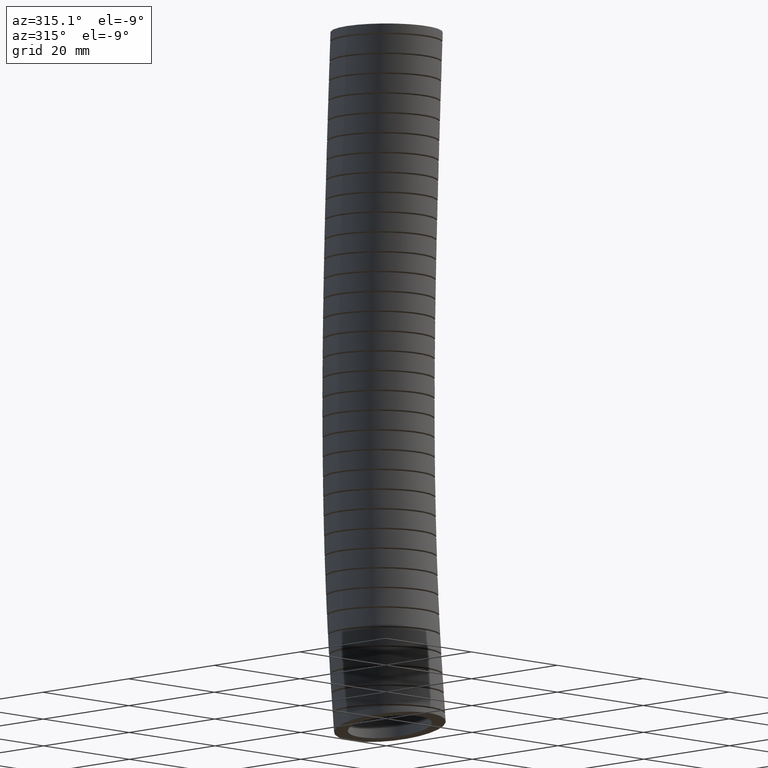
[diagram: clean part render]
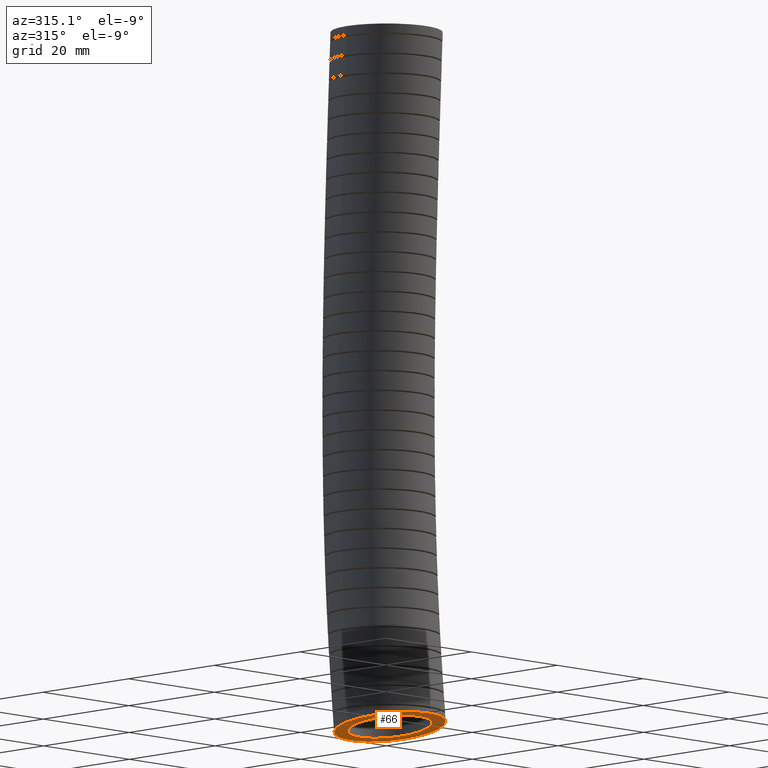
[diagram: same view with one face highlighted and labeled with its STEP entity id]
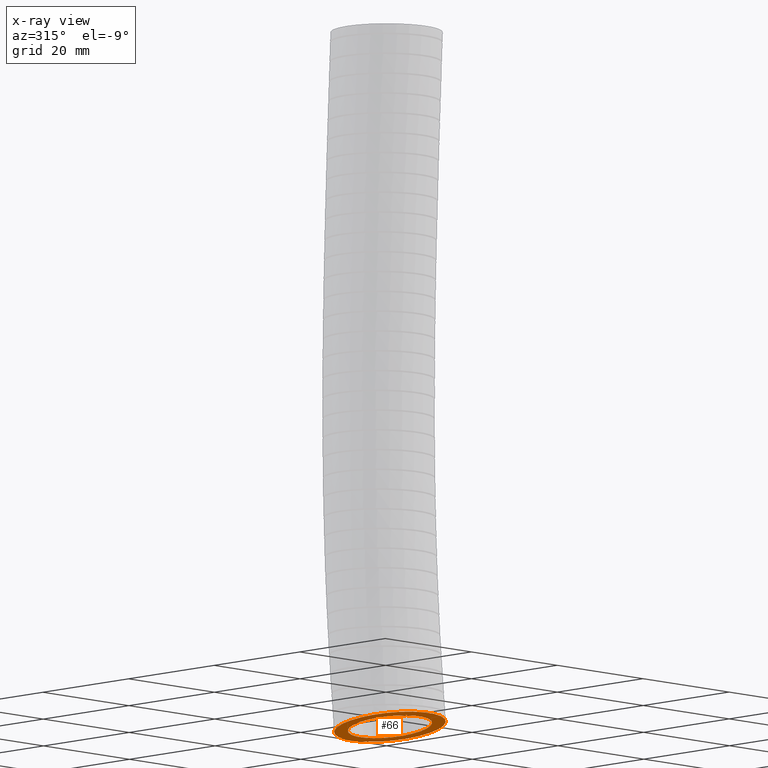
[diagram: x-ray of the same camera — body ghosted, the highlighted face saturated]
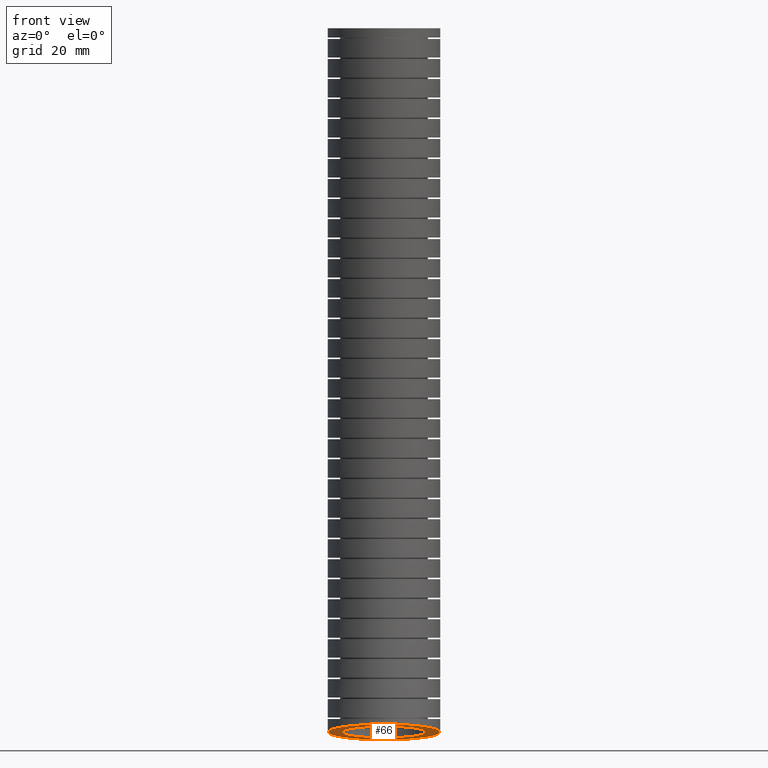
[diagram: same view with one face highlighted and labeled with its STEP entity id]
A machine part, auxiliary view. The second image highlights one B-rep face of the part: STEP entity #66.
The next image is the same camera in x-ray: the body ghosted, the highlighted face saturated — about 0% of this face is hidden behind the body in this view.
A second angle (front view) of the same face is appended — the face is thin or edge-on in the first view.
In plain terms, the highlighted planar face has unit normal (0, 0.1381, 0.9904).
Its self-contained STEP definition (entity closure, byte-faithful):
#42 = EDGE_LOOP ( 'NONE', ( #146, #124 ) ) ;
#43 = EDGE_CURVE ( 'NONE', #222, #938, #1461, .T. ) ;
#51 = ORIENTED_EDGE ( 'NONE', *, *, #224, .T. ) ;
#58 = ORIENTED_EDGE ( 'NONE', *, *, #43, .T. ) ;
#66 = ADVANCED_FACE ( 'NONE', ( #1672, #1671 ), #1678, .F. ) ;
#70 = EDGE_LOOP ( 'NONE', ( #51, #58 ) ) ;
#124 = ORIENTED_EDGE ( 'NONE', *, *, #6200, .F. ) ;
#146 = ORIENTED_EDGE ( 'NONE', *, *, #6262, .F. ) ;
#222 = VERTEX_POINT ( 'NONE', #3356 ) ;
#224 = EDGE_CURVE ( 'NONE', #938, #222, #3404, .T. ) ;
#938 = VERTEX_POINT ( 'NONE', #7361 ) ;
#1457 = DIRECTION ( 'NONE',  ( 1.000000000000000000, 0.0000000000000000000, 0.0000000000000000000 ) ) ;
#1458 = DIRECTION ( 'NONE',  ( 0.0000000000000000000, 0.1381350633062757000, 0.9904134006996124800 ) ) ;
#1459 = CARTESIAN_POINT ( 'NONE',  ( 0.0000000000000000000, -0.02999999999999997100, -4.569999999999999400 ) ) ;
#1460 = AXIS2_PLACEMENT_3D ( 'NONE', #1459, #1458, #1457 ) ;
#1461 = CIRCLE ( 'NONE', #1460, 0.2750000000000000200 ) ;
#1671 = FACE_OUTER_BOUND ( 'NONE', #42, .T. ) ;
#1672 = FACE_BOUND ( 'NONE', #70, .T. ) ;
#1677 = AXIS2_PLACEMENT_3D ( 'NONE', #1728, #1727, #1726 ) ;
#1678 = PLANE ( 'NONE',  #1677 ) ;
#1726 = DIRECTION ( 'NONE',  ( 1.000000000000000000, 0.0000000000000000000, 0.0000000000000000000 ) ) ;
#1727 = DIRECTION ( 'NONE',  ( 0.0000000000000000000, 0.1381350633062757000, 0.9904134006996124800 ) ) ;
#1728 = CARTESIAN_POINT ( 'NONE',  ( 0.0000000000000000000, -0.02999999999999997100, -4.569999999999999400 ) ) ;
#3356 = CARTESIAN_POINT ( 'NONE',  ( -0.2750000000000000200, -0.02999999999999990200, -4.569999999999999400 ) ) ;
#3400 = DIRECTION ( 'NONE',  ( 1.000000000000000000, 0.0000000000000000000, 0.0000000000000000000 ) ) ;
#3401 = DIRECTION ( 'NONE',  ( 0.0000000000000000000, 0.1381350633062757000, 0.9904134006996124800 ) ) ;
#3402 = CARTESIAN_POINT ( 'NONE',  ( 0.0000000000000000000, -0.02999999999999997100, -4.569999999999999400 ) ) ;
#3403 = AXIS2_PLACEMENT_3D ( 'NONE', #3402, #3401, #3400 ) ;
#3404 = CIRCLE ( 'NONE', #3403, 0.2750000000000000200 ) ;
#6200 = EDGE_CURVE ( 'NONE', #6202, #6210, #8733, .T. ) ;
#6202 = VERTEX_POINT ( 'NONE', #8728 ) ;
#6210 = VERTEX_POINT ( 'NONE', #8835 ) ;
#6262 = EDGE_CURVE ( 'NONE', #6210, #6202, #9204, .T. ) ;
#7361 = CARTESIAN_POINT ( 'NONE',  ( 0.2750000000000000200, -0.02999999999999997100, -4.569999999999999400 ) ) ;
#8728 = CARTESIAN_POINT ( 'NONE',  ( -0.3649999999999999900, -0.02999999999999989500, -4.569999999999999400 ) ) ;
#8729 = DIRECTION ( 'NONE',  ( 1.000000000000000000, 0.0000000000000000000, 0.0000000000000000000 ) ) ;
#8730 = DIRECTION ( 'NONE',  ( 0.0000000000000000000, 0.1381350633062757000, 0.9904134006996124800 ) ) ;
#8731 = CARTESIAN_POINT ( 'NONE',  ( 0.0000000000000000000, -0.02999999999999997100, -4.569999999999999400 ) ) ;
#8732 = AXIS2_PLACEMENT_3D ( 'NONE', #8731, #8730, #8729 ) ;
#8733 = CIRCLE ( 'NONE', #8732, 0.3649999999999999900 ) ;
#8835 = CARTESIAN_POINT ( 'NONE',  ( 0.3649999999999999900, -0.02999999999999997100, -4.569999999999999400 ) ) ;
#9204 = CIRCLE ( 'NONE', #9279, 0.3649999999999999900 ) ;
#9276 = DIRECTION ( 'NONE',  ( 1.000000000000000000, 0.0000000000000000000, 0.0000000000000000000 ) ) ;
#9277 = DIRECTION ( 'NONE',  ( 0.0000000000000000000, 0.1381350633062757000, 0.9904134006996124800 ) ) ;
#9278 = CARTESIAN_POINT ( 'NONE',  ( 0.0000000000000000000, -0.02999999999999997100, -4.569999999999999400 ) ) ;
#9279 = AXIS2_PLACEMENT_3D ( 'NONE', #9278, #9277, #9276 ) ;